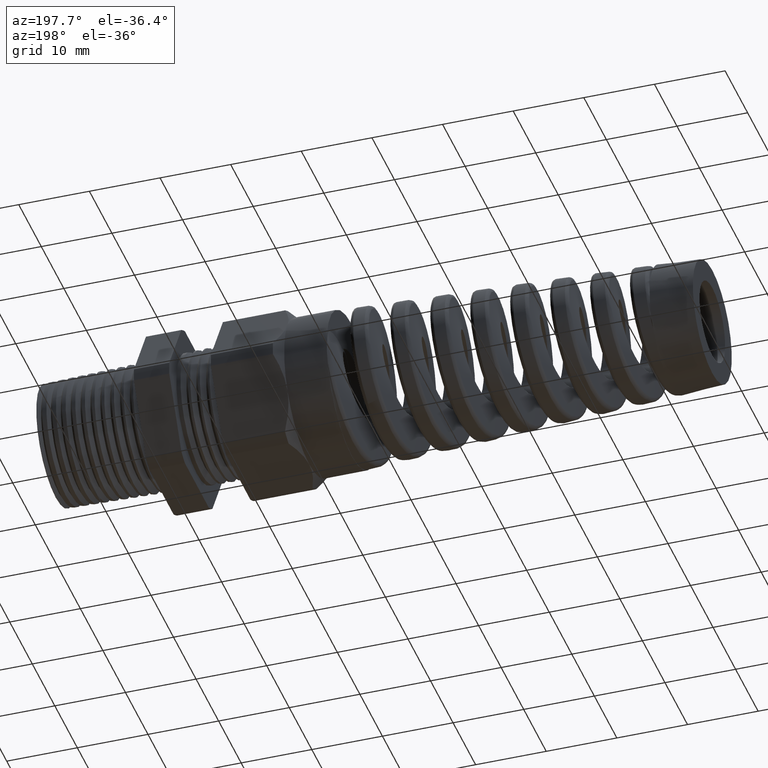
[diagram: clean part render]
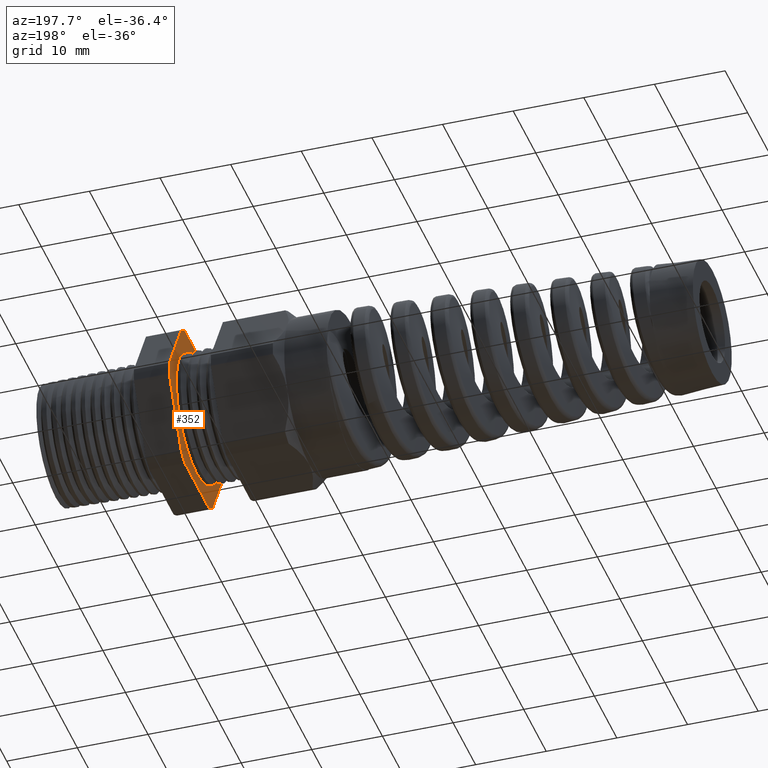
[diagram: same view with one face highlighted and labeled with its STEP entity id]
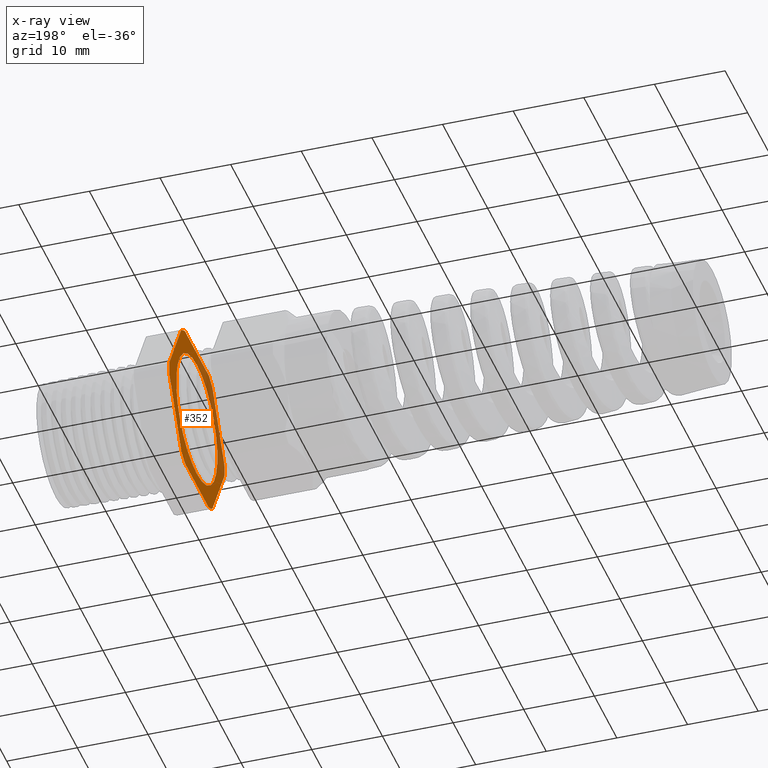
[diagram: x-ray of the same camera — body ghosted, the highlighted face saturated]
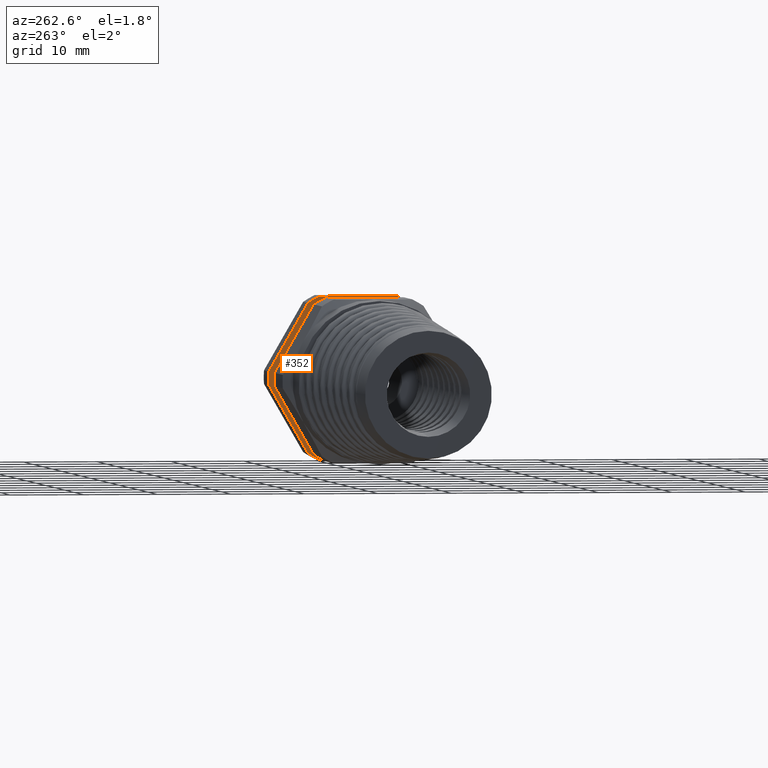
[diagram: same view with one face highlighted and labeled with its STEP entity id]
A machine part, auxiliary view. The second image highlights one B-rep face of the part: STEP entity #352.
The next image is the same camera in x-ray: the body ghosted, the highlighted face saturated — about 28% of this face is hidden behind the body in this view.
A second angle (auxiliary view) of the same face is appended — the face is thin or edge-on in the first view.
In plain terms, the highlighted planar face has unit normal (-1, 0, 0).
Its self-contained STEP definition (entity closure, byte-faithful):
#229 = CARTESIAN_POINT ( 'NONE',  ( -0.5068503937007874400, 0.2095688967857586300, -0.4350000000000000500 ) ) ;
#230 = DIRECTION ( 'NONE',  ( 0.0000000000000000000, 0.0000000000000000000, 1.000000000000000000 ) ) ;
#231 = DIRECTION ( 'NONE',  ( -1.000000000000000000, 0.0000000000000000000, 0.0000000000000000000 ) ) ;
#232 = CARTESIAN_POINT ( 'NONE',  ( -0.5068503937007874400, 0.0000000000000000000, 0.0000000000000000000 ) ) ;
#233 = AXIS2_PLACEMENT_3D ( 'NONE', #232, #231, #230 ) ;
#235 = CARTESIAN_POINT ( 'NONE',  ( -0.5068503937007873300, 0.0000000000000000000, 0.0000000000000000000 ) ) ;
#251 = CARTESIAN_POINT ( 'NONE',  ( -0.5068503937007874400, 0.0000000000000000000, 0.0000000000000000000 ) ) ;
#252 = AXIS2_PLACEMENT_3D ( 'NONE', #251, #282, #281 ) ;
#253 = CIRCLE ( 'NONE', #252, 0.4828500000000000000 ) ;
#254 = DIRECTION ( 'NONE',  ( 0.0000000000000000000, 0.0000000000000000000, -1.000000000000000000 ) ) ;
#255 = DIRECTION ( 'NONE',  ( 1.000000000000000000, 0.0000000000000000000, 0.0000000000000000000 ) ) ;
#256 = AXIS2_PLACEMENT_3D ( 'NONE', #235, #255, #254 ) ;
#257 = CIRCLE ( 'NONE', #256, 0.3589256909493855300 ) ;
#274 = CARTESIAN_POINT ( 'NONE',  ( -0.5068503937007874400, 0.2719366022533522000, -0.3989919884595454200 ) ) ;
#275 = CIRCLE ( 'NONE', #233, 0.4828500000000000000 ) ;
#276 = DIRECTION ( 'NONE',  ( 0.0000000000000000000, -0.4999999999999998300, -0.8660254037844386000 ) ) ;
#277 = VECTOR ( 'NONE', #276, 39.37007874015748900 ) ;
#278 = CARTESIAN_POINT ( 'NONE',  ( -0.5068503937007874400, 0.5942210506462309900, 0.1592210506462306300 ) ) ;
#279 = LINE ( 'NONE', #278, #277 ) ;
#280 = CARTESIAN_POINT ( 'NONE',  ( -0.5068503937007874400, 0.4815054990391101600, -0.03600801154045462500 ) ) ;
#281 = DIRECTION ( 'NONE',  ( 0.0000000000000000000, 0.0000000000000000000, 1.000000000000000000 ) ) ;
#282 = DIRECTION ( 'NONE',  ( -1.000000000000000000, 0.0000000000000000000, 0.0000000000000000000 ) ) ;
#283 = DIRECTION ( 'NONE',  ( 0.0000000000000000000, 0.0000000000000000000, 1.000000000000000000 ) ) ;
#284 = DIRECTION ( 'NONE',  ( -1.000000000000000000, 0.0000000000000000000, 0.0000000000000000000 ) ) ;
#285 = CARTESIAN_POINT ( 'NONE',  ( -0.5068503937007874400, 0.8700000000000000000, 0.0000000000000000000 ) ) ;
#286 = AXIS2_PLACEMENT_3D ( 'NONE', #285, #284, #283 ) ;
#287 = PLANE ( 'NONE',  #286 ) ;
#288 = FACE_OUTER_BOUND ( 'NONE', #373, .T. ) ;
#289 = FACE_BOUND ( 'NONE', #370, .T. ) ;
#352 = ADVANCED_FACE ( 'NONE', ( #289, #288 ), #287, .T. ) ;
#366 = EDGE_CURVE ( 'NONE', #1420, #1419, #257, .T. ) ;
#370 = EDGE_LOOP ( 'NONE', ( #371, #372 ) ) ;
#371 = ORIENTED_EDGE ( 'NONE', *, *, #366, .T. ) ;
#372 = ORIENTED_EDGE ( 'NONE', *, *, #1410, .T. ) ;
#373 = EDGE_LOOP ( 'NONE', ( #436, #374, #377, #380, #440, #443, #462, #465, #433, #457, #460, #455 ) ) ;
#374 = ORIENTED_EDGE ( 'NONE', *, *, #375, .T. ) ;
#375 = EDGE_CURVE ( 'NONE', #439, #376, #253, .T. ) ;
#376 = VERTEX_POINT ( 'NONE', #280 ) ;
#377 = ORIENTED_EDGE ( 'NONE', *, *, #378, .T. ) ;
#378 = EDGE_CURVE ( 'NONE', #376, #379, #279, .T. ) ;
#379 = VERTEX_POINT ( 'NONE', #274 ) ;
#380 = ORIENTED_EDGE ( 'NONE', *, *, #381, .T. ) ;
#381 = EDGE_CURVE ( 'NONE', #379, #382, #275, .T. ) ;
#382 = VERTEX_POINT ( 'NONE', #229 ) ;
#401 = VERTEX_POINT ( 'NONE', #5169 ) ;
#411 = EDGE_CURVE ( 'NONE', #459, #461, #5175, .T. ) ;
#432 = VERTEX_POINT ( 'NONE', #5179 ) ;
#433 = ORIENTED_EDGE ( 'NONE', *, *, #434, .T. ) ;
#434 = EDGE_CURVE ( 'NONE', #432, #401, #5235, .T. ) ;
#436 = ORIENTED_EDGE ( 'NONE', *, *, #437, .T. ) ;
#437 = EDGE_CURVE ( 'NONE', #438, #439, #5089, .T. ) ;
#438 = VERTEX_POINT ( 'NONE', #5085 ) ;
#439 = VERTEX_POINT ( 'NONE', #5161 ) ;
#440 = ORIENTED_EDGE ( 'NONE', *, *, #441, .T. ) ;
#441 = EDGE_CURVE ( 'NONE', #382, #442, #5160, .T. ) ;
#442 = VERTEX_POINT ( 'NONE', #5156 ) ;
#443 = ORIENTED_EDGE ( 'NONE', *, *, #444, .T. ) ;
#444 = EDGE_CURVE ( 'NONE', #442, #445, #5155, .T. ) ;
#445 = VERTEX_POINT ( 'NONE', #5227 ) ;
#455 = ORIENTED_EDGE ( 'NONE', *, *, #484, .T. ) ;
#457 = ORIENTED_EDGE ( 'NONE', *, *, #458, .T. ) ;
#458 = EDGE_CURVE ( 'NONE', #401, #459, #5148, .T. ) ;
#459 = VERTEX_POINT ( 'NONE', #5143 ) ;
#460 = ORIENTED_EDGE ( 'NONE', *, *, #411, .T. ) ;
#461 = VERTEX_POINT ( 'NONE', #5142 ) ;
#462 = ORIENTED_EDGE ( 'NONE', *, *, #463, .T. ) ;
#463 = EDGE_CURVE ( 'NONE', #445, #464, #5140, .T. ) ;
#464 = VERTEX_POINT ( 'NONE', #5136 ) ;
#465 = ORIENTED_EDGE ( 'NONE', *, *, #466, .T. ) ;
#466 = EDGE_CURVE ( 'NONE', #464, #432, #5134, .T. ) ;
#484 = EDGE_CURVE ( 'NONE', #461, #438, #5102, .T. ) ;
#1410 = EDGE_CURVE ( 'NONE', #1419, #1420, #13238, .T. ) ;
#1419 = VERTEX_POINT ( 'NONE', #13160 ) ;
#1420 = VERTEX_POINT ( 'NONE', #13159 ) ;
#5085 = CARTESIAN_POINT ( 'NONE',  ( -0.5068503937007874400, 0.2719366022533518100, 0.3989919884595458700 ) ) ;
#5086 = DIRECTION ( 'NONE',  ( 0.0000000000000000000, 0.4999999999999998300, -0.8660254037844388200 ) ) ;
#5087 = VECTOR ( 'NONE', #5086, 39.37007874015748100 ) ;
#5088 = CARTESIAN_POINT ( 'NONE',  ( -0.5068503937007874400, 0.5942210506462306500, -0.1592210506462307700 ) ) ;
#5089 = LINE ( 'NONE', #5088, #5087 ) ;
#5098 = DIRECTION ( 'NONE',  ( 0.0000000000000000000, 0.0000000000000000000, 1.000000000000000000 ) ) ;
#5099 = DIRECTION ( 'NONE',  ( -1.000000000000000000, 0.0000000000000000000, 0.0000000000000000000 ) ) ;
#5100 = CARTESIAN_POINT ( 'NONE',  ( -0.5068503937007874400, 0.0000000000000000000, 0.0000000000000000000 ) ) ;
#5101 = AXIS2_PLACEMENT_3D ( 'NONE', #5100, #5099, #5098 ) ;
#5102 = CIRCLE ( 'NONE', #5101, 0.4828500000000000000 ) ;
#5130 = DIRECTION ( 'NONE',  ( 0.0000000000000000000, 0.0000000000000000000, 1.000000000000000000 ) ) ;
#5131 = DIRECTION ( 'NONE',  ( -1.000000000000000000, 0.0000000000000000000, 0.0000000000000000000 ) ) ;
#5132 = CARTESIAN_POINT ( 'NONE',  ( -0.5068503937007874400, 0.0000000000000000000, 0.0000000000000000000 ) ) ;
#5133 = AXIS2_PLACEMENT_3D ( 'NONE', #5132, #5131, #5130 ) ;
#5134 = CIRCLE ( 'NONE', #5133, 0.4828500000000000000 ) ;
#5136 = CARTESIAN_POINT ( 'NONE',  ( -0.5068503937007874400, -0.4815054990391101600, -0.03600801154045414600 ) ) ;
#5137 = DIRECTION ( 'NONE',  ( 0.0000000000000000000, -0.4999999999999998900, 0.8660254037844386000 ) ) ;
#5138 = VECTOR ( 'NONE', #5137, 39.37007874015748100 ) ;
#5139 = CARTESIAN_POINT ( 'NONE',  ( -0.5068503937007874400, -0.1592210506462311000, -0.5942210506462308800 ) ) ;
#5140 = LINE ( 'NONE', #5139, #5138 ) ;
#5142 = CARTESIAN_POINT ( 'NONE',  ( -0.5068503937007874400, 0.2095688967857589900, 0.4349999999999998900 ) ) ;
#5143 = CARTESIAN_POINT ( 'NONE',  ( -0.5068503937007874400, -0.2095688967857592400, 0.4349999999999997200 ) ) ;
#5144 = DIRECTION ( 'NONE',  ( 0.0000000000000000000, 0.0000000000000000000, 1.000000000000000000 ) ) ;
#5145 = DIRECTION ( 'NONE',  ( -1.000000000000000000, 0.0000000000000000000, 0.0000000000000000000 ) ) ;
#5146 = CARTESIAN_POINT ( 'NONE',  ( -0.5068503937007874400, 0.0000000000000000000, 0.0000000000000000000 ) ) ;
#5147 = AXIS2_PLACEMENT_3D ( 'NONE', #5146, #5145, #5144 ) ;
#5148 = CIRCLE ( 'NONE', #5147, 0.4828500000000000000 ) ;
#5150 = DIRECTION ( 'NONE',  ( 0.0000000000000000000, 1.000000000000000000, 0.0000000000000000000 ) ) ;
#5151 = VECTOR ( 'NONE', #5150, 39.37007874015748100 ) ;
#5152 = DIRECTION ( 'NONE',  ( -1.000000000000000000, 0.0000000000000000000, 0.0000000000000000000 ) ) ;
#5153 = CARTESIAN_POINT ( 'NONE',  ( -0.5068503937007874400, 0.0000000000000000000, 0.0000000000000000000 ) ) ;
#5154 = AXIS2_PLACEMENT_3D ( 'NONE', #5153, #5152, #5228 ) ;
#5155 = CIRCLE ( 'NONE', #5154, 0.4828500000000000000 ) ;
#5156 = CARTESIAN_POINT ( 'NONE',  ( -0.5068503937007874400, -0.2095688967857585700, -0.4350000000000000500 ) ) ;
#5157 = DIRECTION ( 'NONE',  ( 0.0000000000000000000, -1.000000000000000000, 0.0000000000000000000 ) ) ;
#5158 = VECTOR ( 'NONE', #5157, 39.37007874015748100 ) ;
#5159 = CARTESIAN_POINT ( 'NONE',  ( -0.5068503937007874400, 0.8700000000000000000, -0.4350000000000000500 ) ) ;
#5160 = LINE ( 'NONE', #5159, #5158 ) ;
#5161 = CARTESIAN_POINT ( 'NONE',  ( -0.5068503937007874400, 0.4815054990391101600, 0.03600801154045422900 ) ) ;
#5169 = CARTESIAN_POINT ( 'NONE',  ( -0.5068503937007874400, -0.2719366022533517000, 0.3989919884595458100 ) ) ;
#5174 = CARTESIAN_POINT ( 'NONE',  ( -0.5068503937007874400, 0.8700000000000000000, 0.4349999999999998900 ) ) ;
#5175 = LINE ( 'NONE', #5174, #5151 ) ;
#5179 = CARTESIAN_POINT ( 'NONE',  ( -0.5068503937007874400, -0.4815054990391102200, 0.03600801154045397300 ) ) ;
#5227 = CARTESIAN_POINT ( 'NONE',  ( -0.5068503937007874400, -0.2719366022533515900, -0.3989919884595459800 ) ) ;
#5228 = DIRECTION ( 'NONE',  ( 0.0000000000000000000, 0.0000000000000000000, 1.000000000000000000 ) ) ;
#5232 = DIRECTION ( 'NONE',  ( 0.0000000000000000000, 0.4999999999999997200, 0.8660254037844388200 ) ) ;
#5233 = VECTOR ( 'NONE', #5232, 39.37007874015748100 ) ;
#5234 = CARTESIAN_POINT ( 'NONE',  ( -0.5068503937007874400, -0.1592210506462311000, 0.5942210506462305400 ) ) ;
#5235 = LINE ( 'NONE', #5234, #5233 ) ;
#13159 = CARTESIAN_POINT ( 'NONE',  ( -0.5068503937007873300, 0.0000000000000000000, 0.3589256909493855300 ) ) ;
#13160 = CARTESIAN_POINT ( 'NONE',  ( -0.5068503937007873300, 4.399324354652027800E-017, -0.3589256909493855300 ) ) ;
#13234 = DIRECTION ( 'NONE',  ( 0.0000000000000000000, 0.0000000000000000000, -1.000000000000000000 ) ) ;
#13235 = DIRECTION ( 'NONE',  ( 1.000000000000000000, 0.0000000000000000000, 0.0000000000000000000 ) ) ;
#13236 = CARTESIAN_POINT ( 'NONE',  ( -0.5068503937007873300, 0.0000000000000000000, 0.0000000000000000000 ) ) ;
#13237 = AXIS2_PLACEMENT_3D ( 'NONE', #13236, #13235, #13234 ) ;
#13238 = CIRCLE ( 'NONE', #13237, 0.3589256909493855300 ) ;